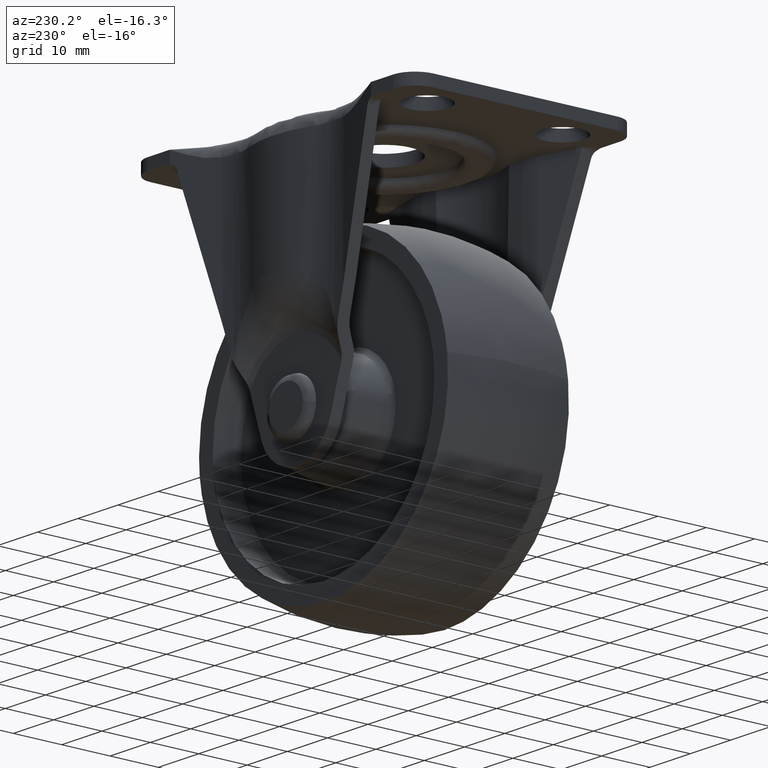
[diagram: clean part render]
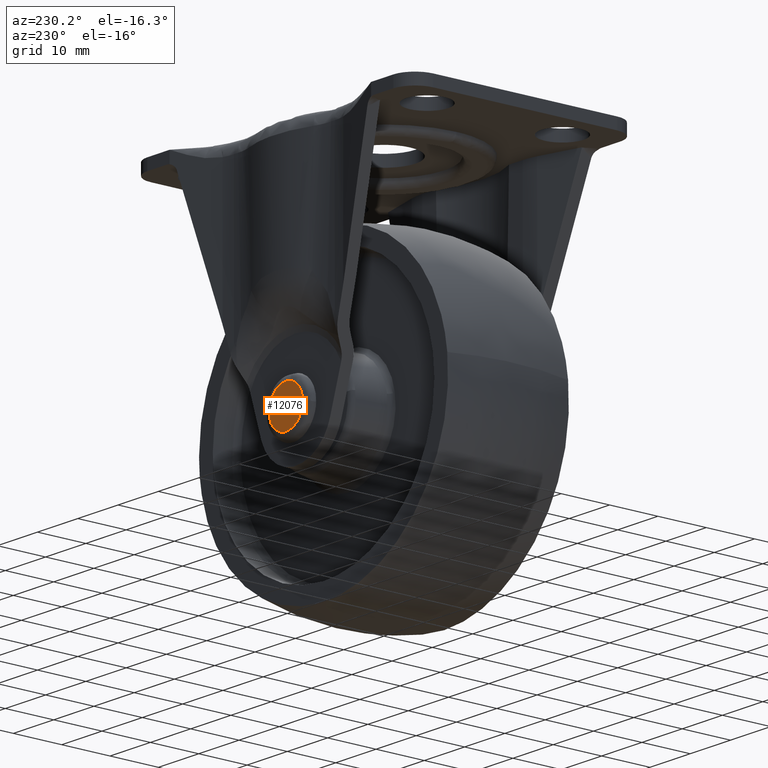
[diagram: same view with one face highlighted and labeled with its STEP entity id]
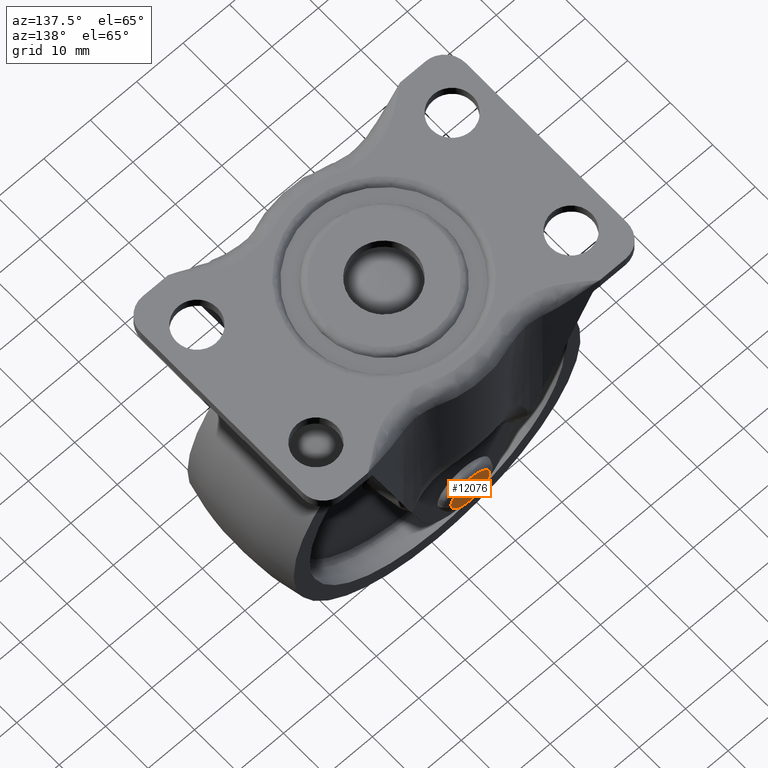
[diagram: same view with one face highlighted and labeled with its STEP entity id]
A machine part, auxiliary view. The second image highlights one B-rep face of the part: STEP entity #12076.
A second angle (auxiliary view) of the same face is appended — the face is thin or edge-on in the first view.
In plain terms, the highlighted face is a freeform B-spline surface patch.
Its self-contained STEP definition (entity closure, byte-faithful):
#11893=CARTESIAN_POINT('',(-4.173599440437769,20.300000000000001,-0.157415574240326));
#11894=VERTEX_POINT('',#11893);
#11905=CARTESIAN_POINT('',(0.0,20.300000000000001,-4.176566999999904));
#11906=VERTEX_POINT('',#11905);
#11907=CARTESIAN_POINT('',(0.0,20.300000000000001,-4.176566999999904));
#11908=CARTESIAN_POINT('',(-0.366841447112937,20.299999999999969,-4.176679771971109));
#11909=CARTESIAN_POINT('',(-1.000402106465793,20.300000000000040,-4.092489828560579));
#11910=CARTESIAN_POINT('',(-2.035551043692773,20.300000000000001,-3.703982571826471));
#11911=CARTESIAN_POINT('',(-2.914506450473986,20.299999999999979,-3.072670593248321));
#11912=CARTESIAN_POINT('',(-3.553202226073625,20.300000000000001,-2.250233733598773));
#11913=CARTESIAN_POINT('',(-4.010988364456001,20.299999999999990,-1.319159723684596));
#11914=CARTESIAN_POINT('',(-4.156288790144344,20.300000000000011,-0.624038040433665));
#11915=CARTESIAN_POINT('',(-4.173599440437769,20.300000000000001,-0.157415574240326));
#11916=B_SPLINE_CURVE_WITH_KNOTS('',3,(#11907,#11908,#11909,#11910,#11911,#11912,#11913,#11914,#11915),.UNSPECIFIED.,.F.,.U.,(4,1,1,1,1,1,4),(0.000000385741547,1.100527326795803,1.900973042601055,3.301612802990850,4.302145733188949,5.002531037664351,6.403236297869412),.UNSPECIFIED.);
#11917=EDGE_CURVE('',#11906,#11894,#11916,.T.);
#11919=CARTESIAN_POINT('',(4.175770969945431,20.300000000000001,-0.081539821148823));
#11920=VERTEX_POINT('',#11919);
#11921=CARTESIAN_POINT('',(4.175770969945431,20.300000000000001,-0.081539821148823));
#11922=CARTESIAN_POINT('',(4.165826492794440,20.299999999999990,-0.621464992016407));
#11923=CARTESIAN_POINT('',(3.968188257347733,20.300000000000001,-1.528414083102436));
#11924=CARTESIAN_POINT('',(3.319787455399736,20.300000000000018,-2.608430479165692));
#11925=CARTESIAN_POINT('',(2.543123031722798,20.299999999999962,-3.370072726192820));
#11926=CARTESIAN_POINT('',(1.450648827761278,20.300000000000072,-3.997288756194396));
#11927=CARTESIAN_POINT('',(0.540017133113046,20.299999999999940,-4.177155344935254));
#11928=CARTESIAN_POINT('',(0.0,20.300000000000001,-4.176566999999904));
#11929=B_SPLINE_CURVE_WITH_KNOTS('',3,(#11921,#11922,#11923,#11924,#11925,#11926,#11927,#11928),.UNSPECIFIED.,.F.,.U.,(4,1,1,1,1,4),(0.000000408344559,1.619787723771418,2.733401782072967,3.745748296323600,4.859362354625171,6.479149670052061),.UNSPECIFIED.);
#11930=EDGE_CURVE('',#11920,#11906,#11929,.T.);
#11977=CARTESIAN_POINT('',(0.0,20.300000000000001,4.176566999999896));
#11978=VERTEX_POINT('',#11977);
#11979=CARTESIAN_POINT('',(0.0,20.300000000000001,4.176566999999896));
#11980=CARTESIAN_POINT('',(0.415135439828418,20.300000000000018,4.176742566996882));
#11981=CARTESIAN_POINT('',(1.141528671260381,20.300000000000029,4.067352558093645));
#11982=CARTESIAN_POINT('',(2.003489921513657,20.299999999999951,3.692623875444129));
#11983=CARTESIAN_POINT('',(2.692339578719448,20.300000000000001,3.225017157759730));
#11984=CARTESIAN_POINT('',(3.334092458787522,20.299999999999969,2.586811992896015));
#11985=CARTESIAN_POINT('',(3.998131136167618,20.300000000000090,1.478438212907687));
#11986=CARTESIAN_POINT('',(4.187960306527941,20.299999999999919,0.506563009634277));
#11987=CARTESIAN_POINT('',(4.175770969945431,20.300000000000001,-0.081539821148823));
#11988=B_SPLINE_CURVE_WITH_KNOTS('',3,(#11979,#11980,#11981,#11982,#11983,#11984,#11985,#11986,#11987),.UNSPECIFIED.,.F.,.U.,(4,1,1,1,1,1,4),(0.000000382095544,1.245401719192467,2.179493744252343,2.802233170952785,3.736205854567020,4.877900806427107,6.642251949375909),.UNSPECIFIED.);
#11989=EDGE_CURVE('',#11978,#11920,#11988,.T.);
#11991=CARTESIAN_POINT('',(-4.173599440437769,20.300000000000001,-0.157415574240326));
#11992=CARTESIAN_POINT('',(-4.188256103098118,20.299999999999990,0.227209282062559));
#11993=CARTESIAN_POINT('',(-4.120641797120443,20.299999999999990,0.894949693327555));
#11994=CARTESIAN_POINT('',(-3.792913843783086,20.300000000000001,1.823505212515358));
#11995=CARTESIAN_POINT('',(-3.256710897061353,20.299999999999990,2.692629174409055));
#11996=CARTESIAN_POINT('',(-2.482829061126374,20.300000000000018,3.419372721284464));
#11997=CARTESIAN_POINT('',(-1.364238788226248,20.299999999999979,4.016021404160055));
#11998=CARTESIAN_POINT('',(-0.524941374244712,20.300000000000011,4.177094803368850));
#11999=CARTESIAN_POINT('',(0.0,20.300000000000001,4.176566999999896));
#12000=B_SPLINE_CURVE_WITH_KNOTS('',3,(#11991,#11992,#11993,#11994,#11995,#11996,#11997,#11998,#11999),.UNSPECIFIED.,.F.,.U.,(4,1,1,1,1,1,4),(0.000000403434429,1.154682796612322,1.994475167978840,2.939261045433457,4.198802876991822,5.143598925414026,6.718165739377374),.UNSPECIFIED.);
#12001=EDGE_CURVE('',#11894,#11978,#12000,.T.);
#12065=CARTESIAN_POINT('',(-4.593244677051759,20.300000000000001,4.593806105523137));
#12066=CARTESIAN_POINT('',(-4.593244677051759,20.300000000000001,-4.593806254888821));
#12067=CARTESIAN_POINT('',(4.592945019819630,20.300000000000001,4.593806105523137));
#12068=CARTESIAN_POINT('',(4.592945019819630,20.300000000000001,-4.593806254888821));
#12069=B_SPLINE_SURFACE_WITH_KNOTS('',1,1,((#12065,#12067),(#12066,#12068)),.UNSPECIFIED.,.F.,.F.,.U.,(2,2),(2,2),(0.0,9.187612360411958),(0.0,9.186189696871388),.UNSPECIFIED.);
#12070=ORIENTED_EDGE('',*,*,#11989,.T.);
#12071=ORIENTED_EDGE('',*,*,#11930,.T.);
#12072=ORIENTED_EDGE('',*,*,#11917,.T.);
#12073=ORIENTED_EDGE('',*,*,#12001,.T.);
#12074=EDGE_LOOP('',(#12070,#12071,#12072,#12073));
#12075=FACE_OUTER_BOUND('',#12074,.T.);
#12076=ADVANCED_FACE('',(#12075),#12069,.F.);